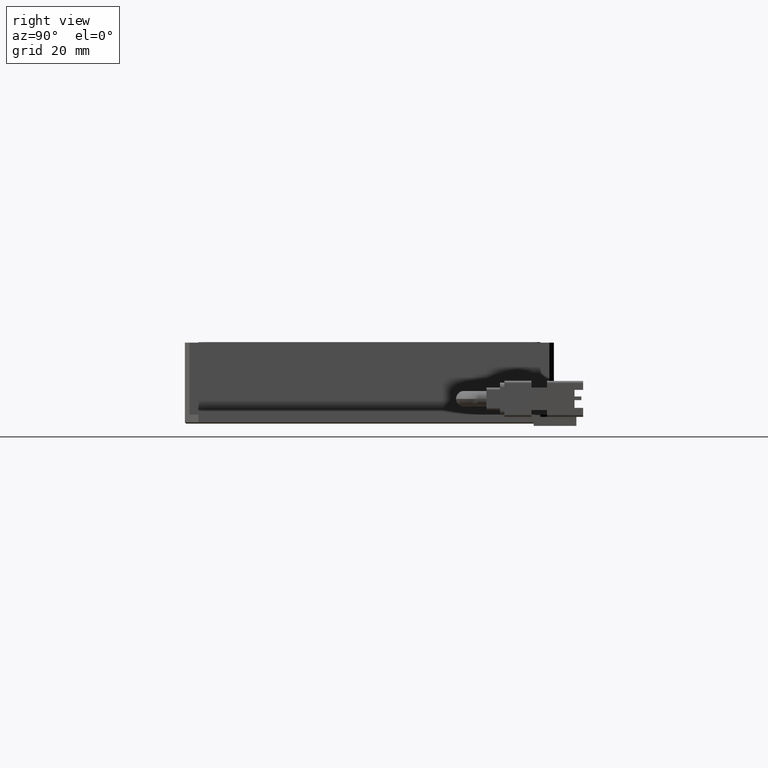
[diagram: clean part render]
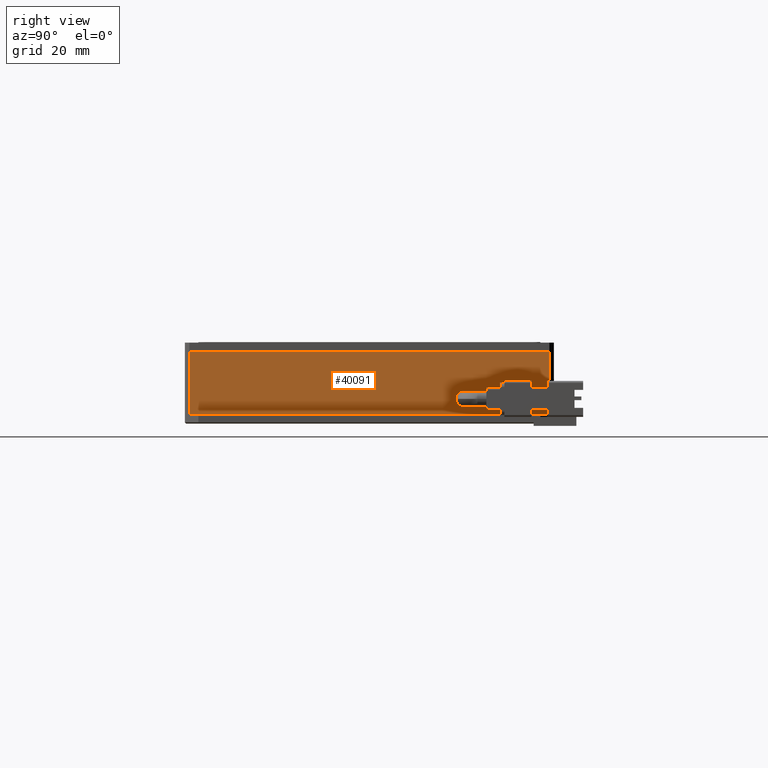
[diagram: same view with one face highlighted and labeled with its STEP entity id]
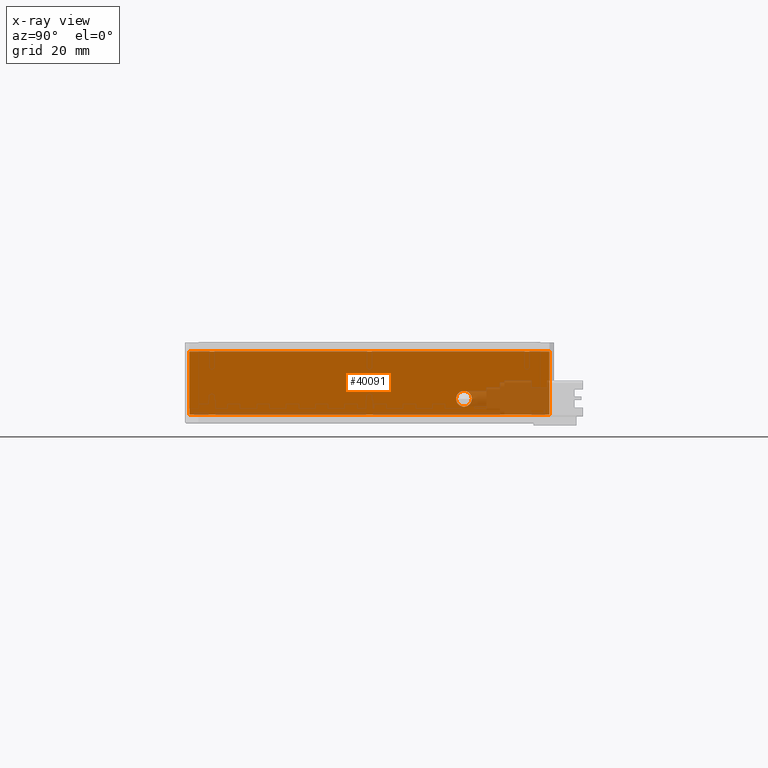
[diagram: x-ray of the same camera — body ghosted, the highlighted face saturated]
A machine part, right view. The second image highlights one B-rep face of the part: STEP entity #40091.
The next image is the same camera in x-ray: the body ghosted, the highlighted face saturated — about 9% of this face is hidden behind the body in this view.
In plain terms, the highlighted planar face has unit normal (-1, 0, 0).
Its self-contained STEP definition (entity closure, byte-faithful):
#221 = CARTESIAN_POINT ( 'NONE',  ( 58.00152730049637000, 45.85299732722416600, -4.485127547138034700E-012 ) ) ;
#627 = ORIENTED_EDGE ( 'NONE', *, *, #2019, .T. ) ;
#2019 = EDGE_CURVE ( 'NONE', #35652, #48195, #52893, .T. ) ;
#3064 = DIRECTION ( 'NONE',  ( 0.0000000000000000000, 0.0000000000000000000, -1.000000000000000000 ) ) ;
#3948 = EDGE_CURVE ( 'NONE', #29540, #28285, #31759, .T. ) ;
#4700 = EDGE_CURVE ( 'NONE', #38389, #35652, #49580, .T. ) ;
#5446 = AXIS2_PLACEMENT_3D ( 'NONE', #36889, #12221, #40995 ) ;
#5750 = VECTOR ( 'NONE', #15456, 1000.000000000000000 ) ;
#5955 = CARTESIAN_POINT ( 'NONE',  ( 58.00152730049637000, 44.85299732722415200, -4.487729632352000000E-012 ) ) ;
#8142 = CARTESIAN_POINT ( 'NONE',  ( 58.00152730049637000, 25.85299732722415900, 1.749999999995520300 ) ) ;
#8897 = AXIS2_PLACEMENT_3D ( 'NONE', #52399, #27739, #3064 ) ;
#11458 = CARTESIAN_POINT ( 'NONE',  ( 58.00152730049637000, -35.14700267277585500, 13.99999999999551600 ) ) ;
#11467 = AXIS2_PLACEMENT_3D ( 'NONE', #23825, #52550, #27911 ) ;
#12221 = DIRECTION ( 'NONE',  ( 1.000000000000000000, -0.0000000000000000000, -0.0000000000000000000 ) ) ;
#15456 = DIRECTION ( 'NONE',  ( 0.0000000000000000000, 0.0000000000000000000, 1.000000000000000000 ) ) ;
#15773 = DIRECTION ( 'NONE',  ( 0.0000000000000000000, 0.0000000000000000000, 1.000000000000000000 ) ) ;
#16629 = FACE_BOUND ( 'NONE', #21172, .T. ) ;
#16835 = CARTESIAN_POINT ( 'NONE',  ( 58.00152730049637000, 25.85299732722415900, 5.249999999995510300 ) ) ;
#18935 = CARTESIAN_POINT ( 'NONE',  ( 58.00152730049637000, 45.85299732722416600, 13.99999999999551600 ) ) ;
#19428 = EDGE_CURVE ( 'NONE', #38389, #30233, #38929, .T. ) ;
#19723 = CARTESIAN_POINT ( 'NONE',  ( 58.00152730049637000, -35.14700267277584800, 13.99999999999551600 ) ) ;
#19938 = CARTESIAN_POINT ( 'NONE',  ( 58.00152730049637000, -35.14700267277585500, -4.488596994089988400E-012 ) ) ;
#21172 = EDGE_LOOP ( 'NONE', ( #37059, #26805 ) ) ;
#23102 = DIRECTION ( 'NONE',  ( -0.0000000000000000000, -1.000000000000000000, -0.0000000000000000000 ) ) ;
#23825 = CARTESIAN_POINT ( 'NONE',  ( 58.00152730049637000, -36.14700267277584100, 13.99999999999551600 ) ) ;
#24411 = LINE ( 'NONE', #19723, #33998 ) ;
#26805 = ORIENTED_EDGE ( 'NONE', *, *, #3948, .F. ) ;
#27739 = DIRECTION ( 'NONE',  ( 1.000000000000000000, -0.0000000000000000000, -0.0000000000000000000 ) ) ;
#27911 = DIRECTION ( 'NONE',  ( 0.0000000000000000000, 0.0000000000000000000, 1.000000000000000000 ) ) ;
#28285 = VERTEX_POINT ( 'NONE', #8142 ) ;
#29540 = VERTEX_POINT ( 'NONE', #16835 ) ;
#30118 = CARTESIAN_POINT ( 'NONE',  ( 58.00152730049637000, 44.85299732722413800, 13.99999999999551600 ) ) ;
#30233 = VERTEX_POINT ( 'NONE', #19938 ) ;
#31038 = EDGE_LOOP ( 'NONE', ( #47243, #627, #38699, #53424 ) ) ;
#31759 = CIRCLE ( 'NONE', #5446, 1.749999999999994700 ) ;
#33132 = DIRECTION ( 'NONE',  ( -0.0000000000000000000, -1.000000000000000000, -0.0000000000000000000 ) ) ;
#33454 = EDGE_CURVE ( 'NONE', #30233, #48195, #24411, .T. ) ;
#33998 = VECTOR ( 'NONE', #15773, 1000.000000000000000 ) ;
#35652 = VERTEX_POINT ( 'NONE', #30118 ) ;
#36889 = CARTESIAN_POINT ( 'NONE',  ( 58.00152730049637000, 25.85299732722415900, 3.499999999995515100 ) ) ;
#37059 = ORIENTED_EDGE ( 'NONE', *, *, #49346, .F. ) ;
#38389 = VERTEX_POINT ( 'NONE', #5955 ) ;
#38699 = ORIENTED_EDGE ( 'NONE', *, *, #33454, .F. ) ;
#38929 = LINE ( 'NONE', #221, #48602 ) ;
#40091 = ADVANCED_FACE ( 'NONE', ( #16629, #48176 ), #48224, .F. ) ;
#40995 = DIRECTION ( 'NONE',  ( 0.0000000000000000000, 0.0000000000000000000, -1.000000000000000000 ) ) ;
#41920 = VECTOR ( 'NONE', #23102, 1000.000000000000000 ) ;
#44231 = CARTESIAN_POINT ( 'NONE',  ( 58.00152730049637000, 44.85299732722415200, 13.99999999999551600 ) ) ;
#47243 = ORIENTED_EDGE ( 'NONE', *, *, #4700, .T. ) ;
#47621 = CIRCLE ( 'NONE', #8897, 1.749999999999994700 ) ;
#48176 = FACE_OUTER_BOUND ( 'NONE', #31038, .T. ) ;
#48195 = VERTEX_POINT ( 'NONE', #11458 ) ;
#48224 = PLANE ( 'NONE',  #11467 ) ;
#48602 = VECTOR ( 'NONE', #33132, 1000.000000000000000 ) ;
#49346 = EDGE_CURVE ( 'NONE', #28285, #29540, #47621, .T. ) ;
#49580 = LINE ( 'NONE', #44231, #5750 ) ;
#52399 = CARTESIAN_POINT ( 'NONE',  ( 58.00152730049637000, 25.85299732722415900, 3.499999999995515100 ) ) ;
#52550 = DIRECTION ( 'NONE',  ( -1.000000000000000000, 0.0000000000000000000, 0.0000000000000000000 ) ) ;
#52893 = LINE ( 'NONE', #18935, #41920 ) ;
#53424 = ORIENTED_EDGE ( 'NONE', *, *, #19428, .F. ) ;